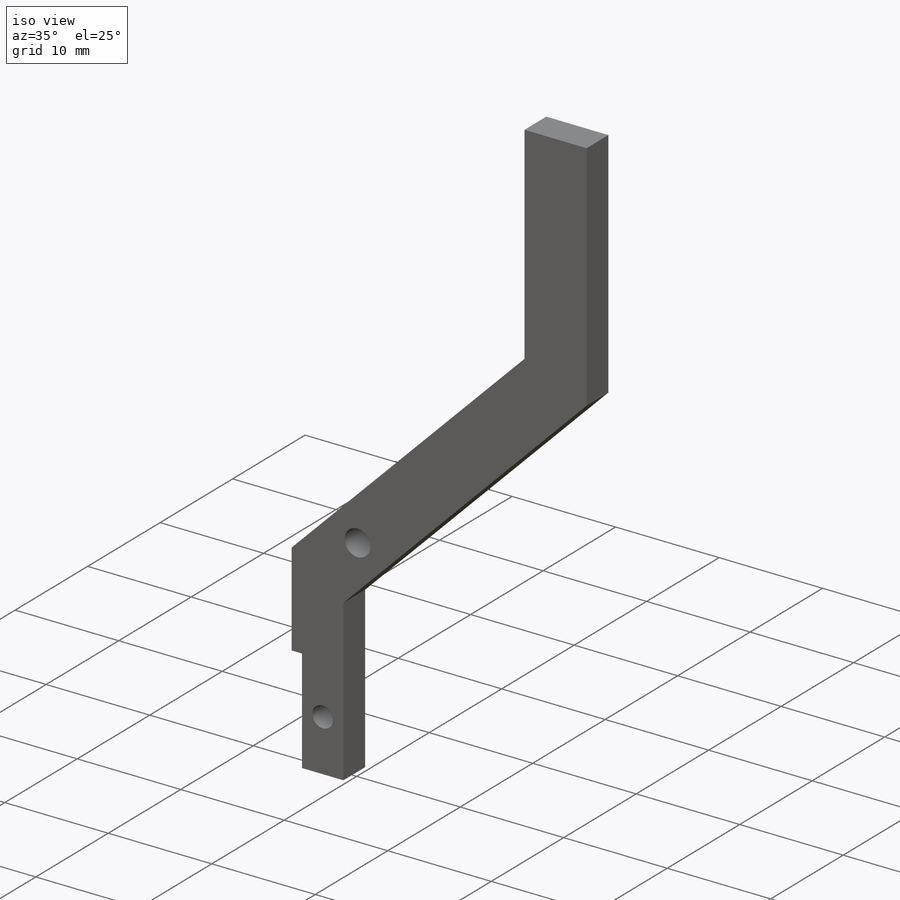
[diagram: iso view]
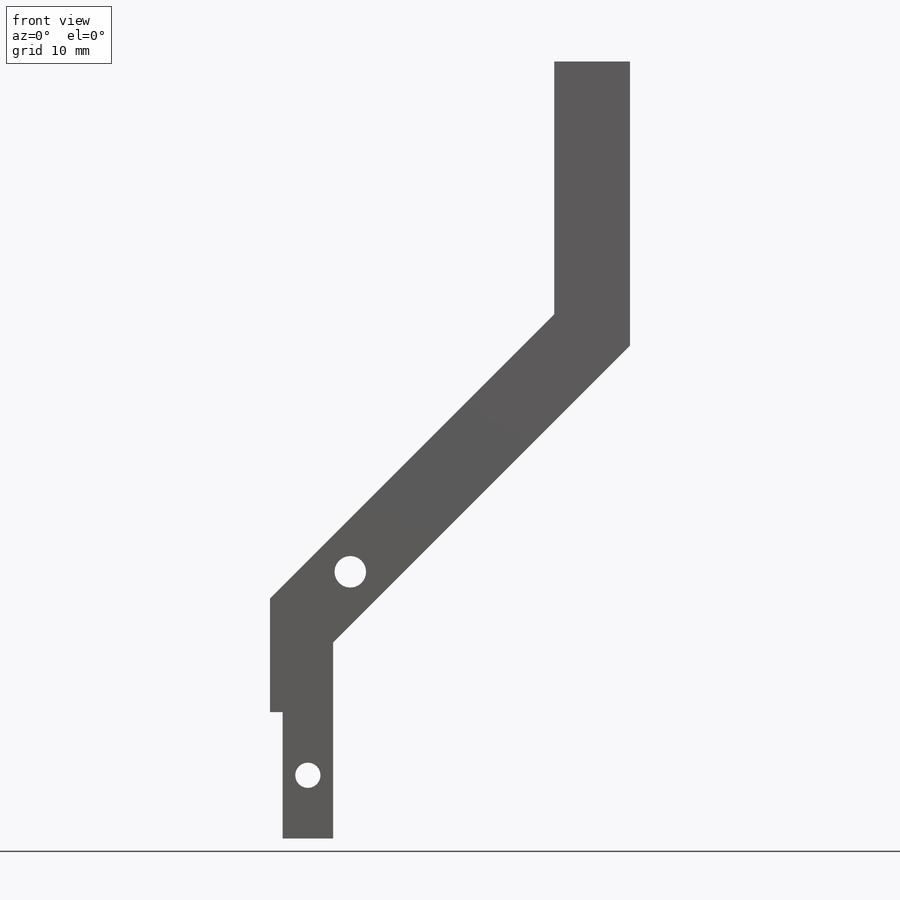
[diagram: front view]
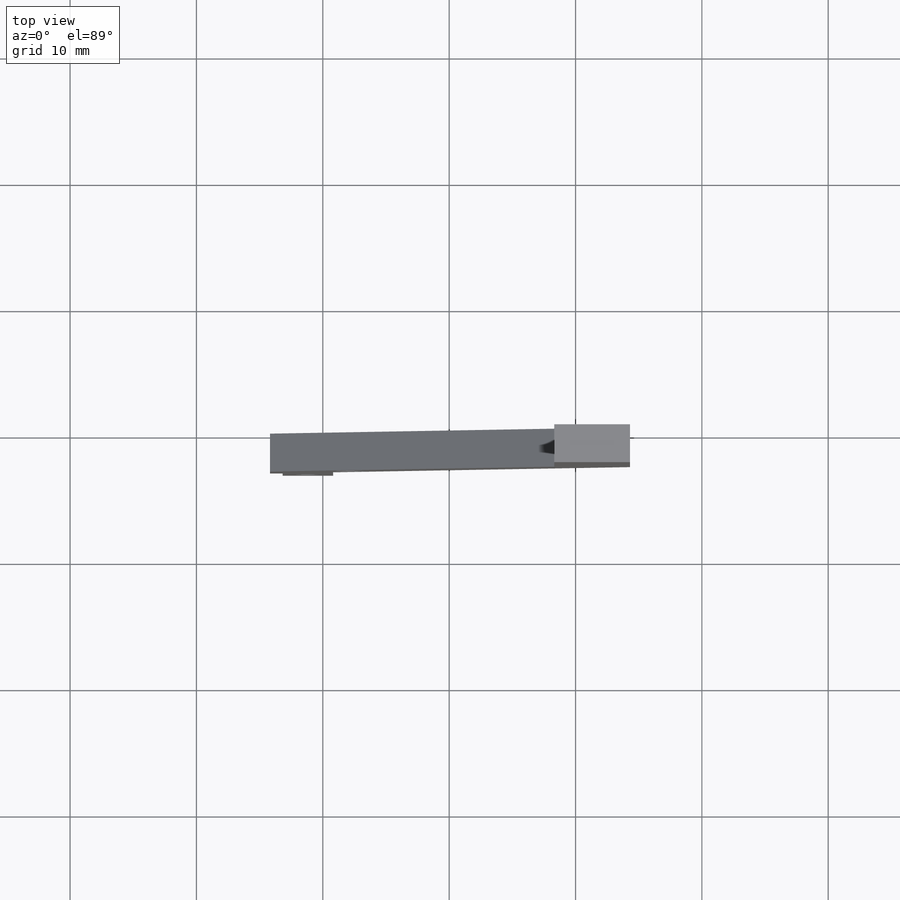
[diagram: top view]
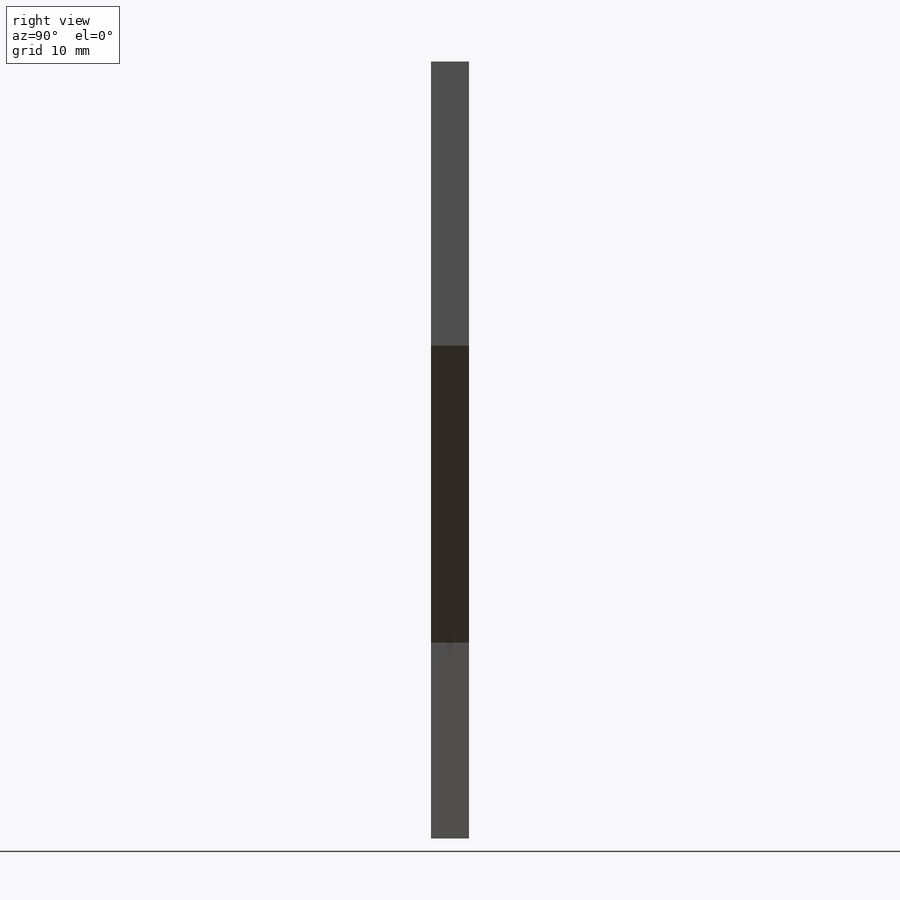
[diagram: right view]
SOLIDWORKS PART (.sldprt)
format: sldprt  version: not decoded by parser v0  size: 183,296 bytes
history: native  units: mm
features: sketch x5, cut_extrude x4, material x1, extrude x1 (+13 scaffold rows collapsed)
feature tree (24):
  scaffold x13  (default folders/planes/origin — collapsed)
  material  "Malleable Cast Iron"
  sketch  "Sketch1"  dims[c1.D1=17.5mm c1.D2=19.43mm c1.D3=20.0mm c1.D4=15.5mm c1.D5=6.0mm c1.D6=6.0mm c1.D7=6.0mm c1.D8=~130.537591mm c2.D2=~31.391105mm c3.D2=45.0deg]
  extrude  "Boss-Extrude1"  Depth=3mm
  sketch  "Sketch3"  dims[c1.D1=~10.827801mm c1.D2=~1.228707mm c2.D1=10.0mm c2.D2=2.0mm]
  cut_extrude  "Cut-Extrude2"  Depth=3mm
  sketch  "Sketch5"  dims[D1=1.0mm]
  cut_extrude  "Cut-Extrude4"  Depth=10mm
  sketch  "Sketch6"  dims[D3=~1.194779mm D1=6.36mm D2=3.0mm]
  cut_extrude  "Cut-Extrude5"  Depth=3mm
  sketch  "Sketch7"  dims[D1=1.25mm]
  cut_extrude  "Cut-Extrude6"  Depth=10mm
decode coverage: 10 of 10 modeling features carry decoded parameters
note: ~ marks probable driven/reference dimensions
note: suppression state not decoded; provenance and decode notes live in map.json
